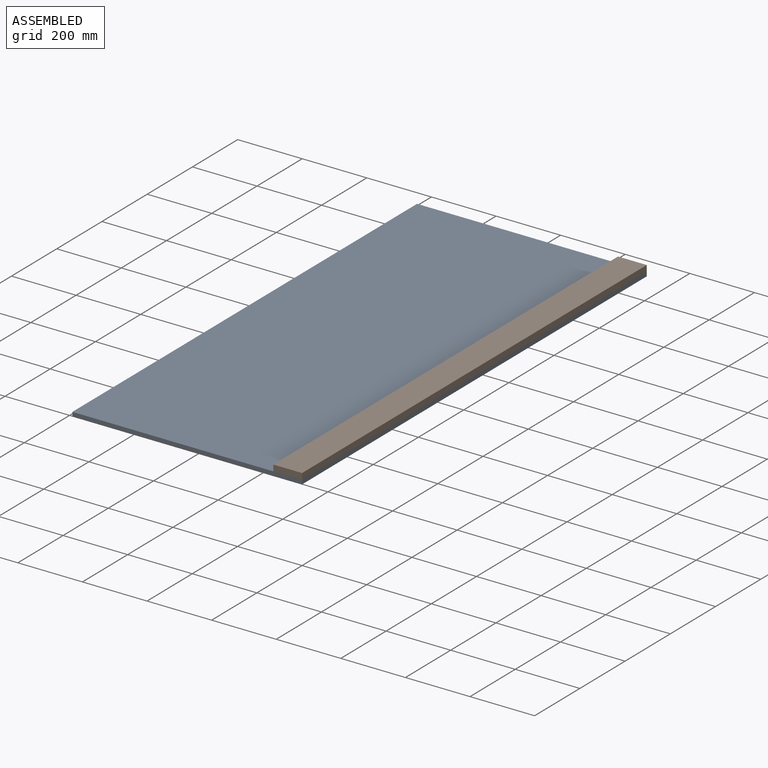
[diagram: assembled view]
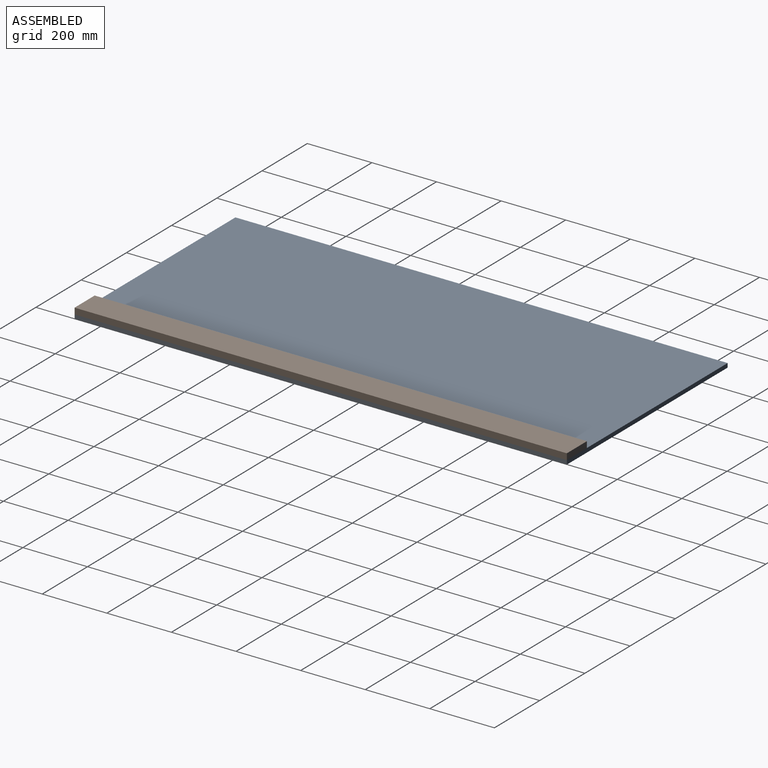
[diagram: assembled view, second angle]
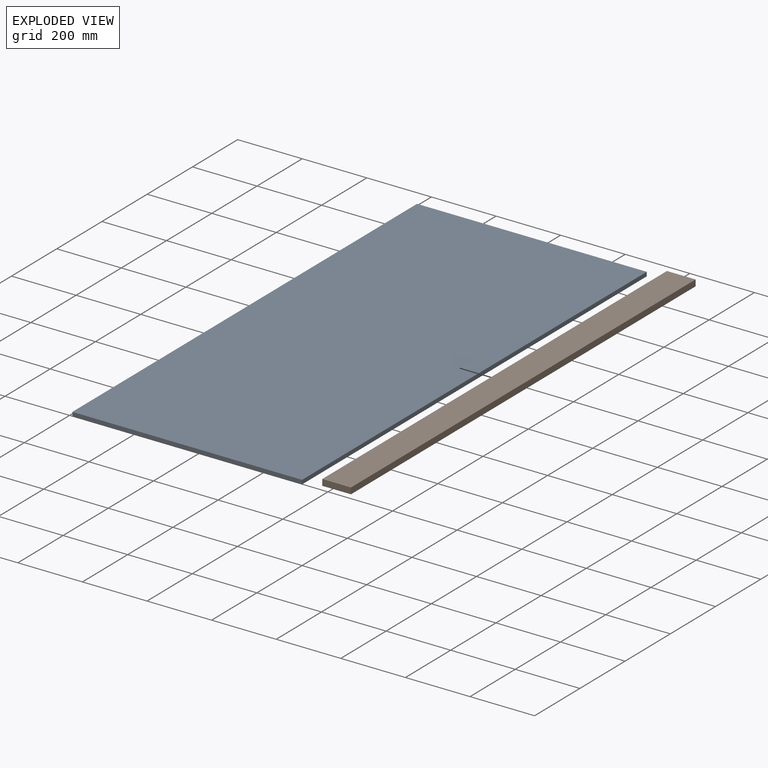
[diagram: exploded view]
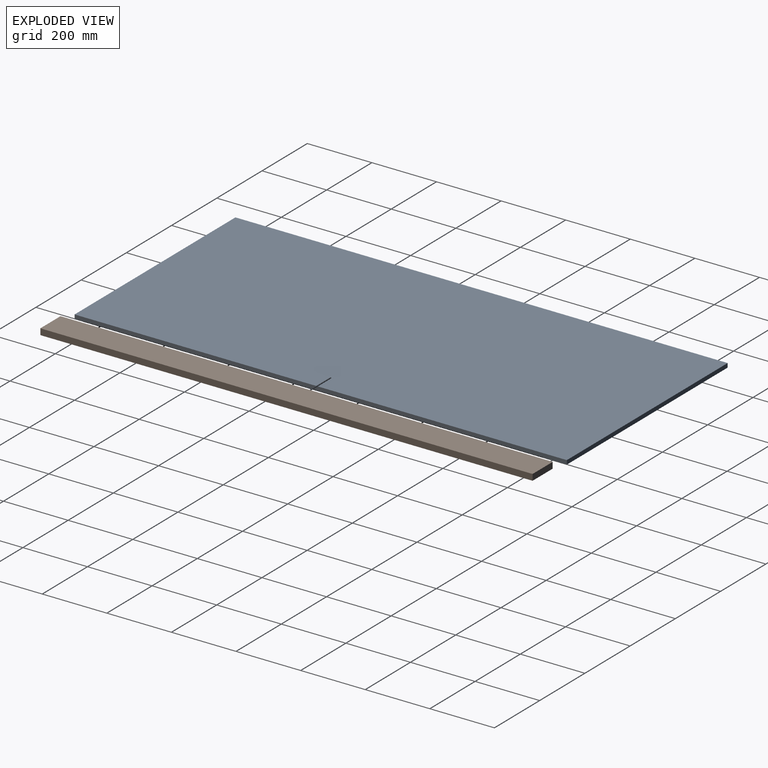
[diagram: exploded view, second angle]
ASSEMBLY  parts=2 mates=3
PART A: 6 faces, bbox 711.2x1524x12.7 mm
  f0: plane 1524x711.2mm, normal (0,0,1), area 1083868.8mm2, adj f1,f3,f4,f5
  f1: plane 1524x12.7mm, normal (-1,0,0), area 19354.8mm2, adj f0,f2,f4,f5
  f2: plane 1524x711.2mm, normal (0,0,-1), area 1083868.8mm2, adj f1,f3,f4,f5
  f3: plane 1524x12.7mm, normal (1,0,0), area 19354.8mm2, adj f0,f2,f4,f5
  f4: plane 711.2x12.7mm, normal (0,1,0), area 9032.2mm2, adj f0,f1,f2,f3
  f5: plane 711.2x12.7mm, normal (0,-1,0), area 9032.2mm2, adj f0,f1,f2,f3
PART B: 6 faces, bbox 88.9x1524x19.1 mm
  f0: plane 1524x88.9mm, normal (0,0,-1), area 135483.6mm2, adj f1,f3,f4,f5
  f1: plane 1524x19.05mm, normal (1,0,0), area 29032.2mm2, adj f0,f2,f4,f5
  f2: plane 1524x88.9mm, normal (0,0,1), area 135483.6mm2, adj f1,f3,f4,f5
  f3: plane 1524x19.05mm, normal (-1,0,0), area 29032.2mm2, adj f0,f2,f4,f5
  f4: plane 88.9x19.05mm, normal (0,1,0), area 1693.5mm2, adj f0,f1,f2,f3
  f5: plane 88.9x19.05mm, normal (0,-1,0), area 1693.5mm2, adj f0,f1,f2,f3
PLACE A at identity
PLACE B t=(0,0,12.7)mm
MATE planar B.f1 <-> A.f3  axis (1,0,0) through (0,762,22.22)mm
MATE planar A.f0 <-> B.f0  axis (0,0,1) through (-355.6,762,12.7)mm
MATE planar B.f5 <-> A.f5  axis (0,-1,0) through (-44.45,0,22.22)mm
